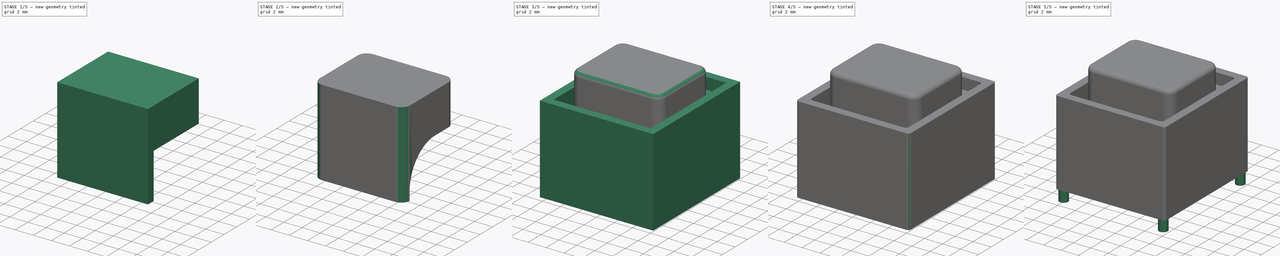
[diagram: build sequence overview — one tinted view per stage of 5, left to right]
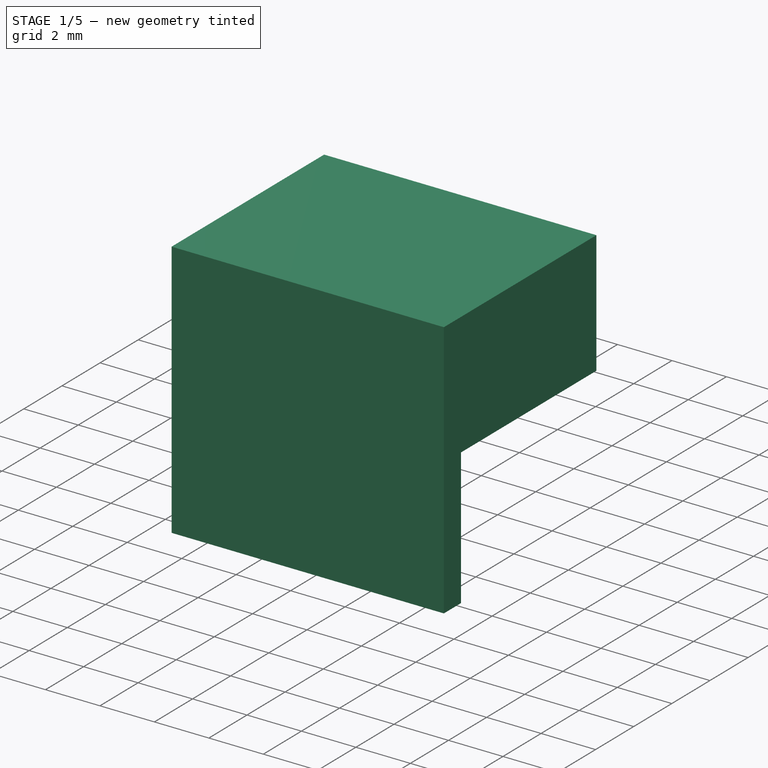
[diagram: stage 1 of 5 — iso view after this stage's code; geometry added in this stage tinted green]
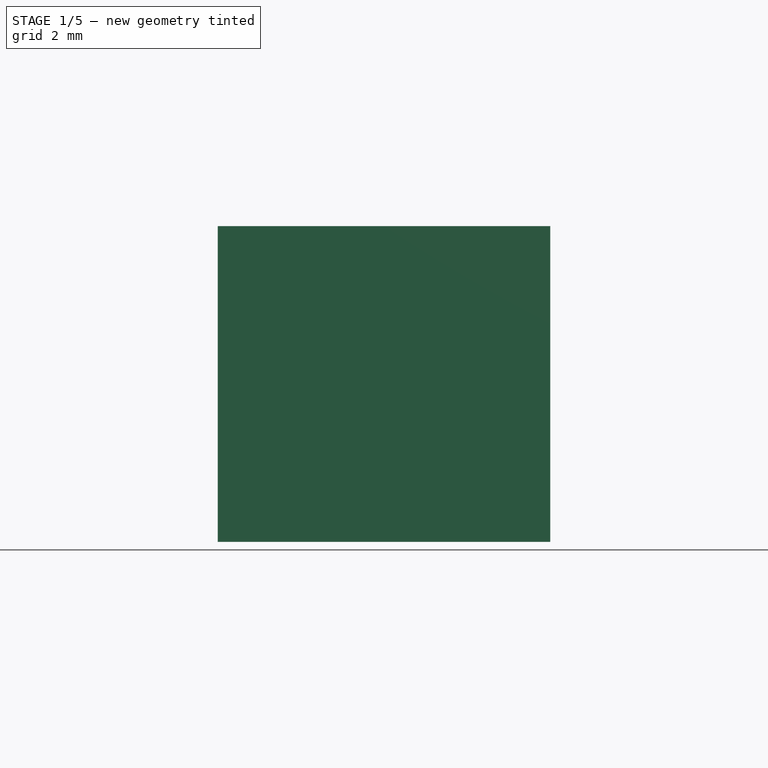
[diagram: stage 1 of 5 — front view after this stage's code; geometry added in this stage tinted green]
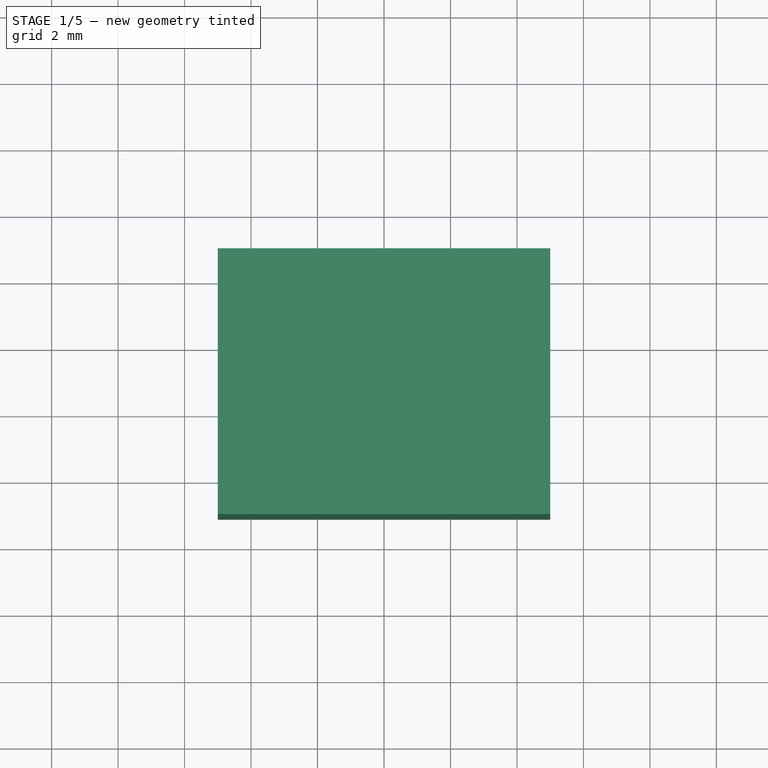
[diagram: stage 1 of 5 — top view after this stage's code; geometry added in this stage tinted green]
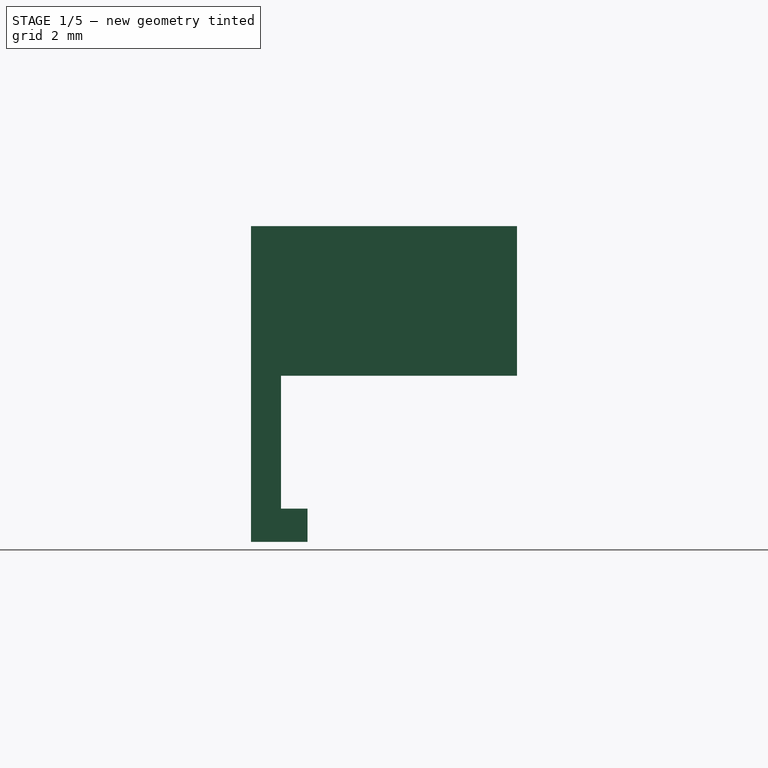
[diagram: stage 1 of 5 — right view after this stage's code; geometry added in this stage tinted green]
FCSTD DOCUMENT  (FreeCAD 0.18R16146 (Git))
Label: switch10x8_V1_0
License: All rights reserved
LicenseURL: http://en.wikipedia.org/wiki/All_rights_reserved
objects: Drawing::FeatureViewPython×14, PartDesign::Fillet×10, Drawing::FeatureViewPart×9, Sketcher::SketchObject×8, PartDesign::Pad×5, Drawing::FeaturePage×4, PartDesign::Pocket×3, Part::Feature×2, PartDesign::Body×2, PartDesign::Plane×1, PartDesign::Mirrored×1, PartDesign::ShapeBinder×1, Part::Compound×1
note: 42 computed .brp shape members not serialized (recipe doc carries the construction recipe); baked Part::Feature solids carry a one-line shape summary decoded from their .brp

FEATURE [Part::Feature] Part__Feature  label="LED_WS2812_PLCC6_50x50mm_P16mm"
  shape: bbox 5.4 x 5 x 1.85 mm, 94 faces (baked)
FEATURE [PartDesign::Plane] DatumPlane  label="UnterkanteFaceplate"
  Length = 24
  MapMode = 2
  Placement = pos=(0,0,10) rot=(0,0,1;0rad)
  ResizeMode = 0
  Width = 24
FEATURE [Sketcher::SketchObject] Sketch
  MapMode = 5
  Placement = pos=(0,0,10) rot=(0,0,1;0rad)
  Support = -> [DatumPlane]
  sketch-geometry (5):
    g0: LineSegment StartX=-5 StartY=2.9 StartZ=0 EndX=5 EndY=2.9 EndZ=0
    g1: LineSegment StartX=5 StartY=2.9 StartZ=0 EndX=5 EndY=-5.1 EndZ=0
    g2: LineSegment StartX=5 StartY=-5.1 StartZ=0 EndX=-5 EndY=-5.1 EndZ=0
    g3: LineSegment StartX=-5 StartY=-5.1 StartZ=0 EndX=-5 EndY=2.9 EndZ=0
    g4: GeomPoint X=0 Y=-1.1 Z=0
  constraints (13):
    c: Coincident(g0,g1)
    c: Coincident(g1,g2)
    c: Coincident(g2,g3)
    c: Coincident(g3,g0)
    c: Horizontal(g0)
    c: Horizontal(g2)
    c: Vertical(g1)
    c: Vertical(g3)
    c: DistanceY(g1,g1) = 8
    c: DistanceX(g0,g0) = 10
    c: PointOnObject(g4,g-2)
    c: DistanceY(g4,g-1) = 1.1
    c: Symmetric(g0,g1,g4)
FEATURE [Part::Feature] Part__Feature001  label="SW_SPST_CK_RS282G05A3"
  Placement = pos=(0,-4.5,0) rot=(0,0,1;0rad)
  shape: bbox 8 x 3.5 x 2.5 mm, 109 faces (baked)
FEATURE [PartDesign::Pad] Pad  label="Körper"
  Length = 2
  Length2 = 7.5
  Placement = pos=(0,0,10) rot=(0,0,1;0rad)
  Profile = -> Sketch
  Reversed = true
  Type = 4
FEATURE [Sketcher::SketchObject] Sketch001
  ExternalGeometry = -> [Pad]
  MapMode = 5
  Placement = pos=(0,0,2.5) rot=(1,0,0;3.14159rad)
  Support = -> [Pad]
  sketch-geometry (5):
    g0: GeomPoint X=0 Y=1.1 Z=0
    g1: LineSegment StartX=-4.1 StartY=4.2 StartZ=0 EndX=4.1 EndY=4.2 EndZ=0
    g2: LineSegment StartX=4.1 StartY=4.2 StartZ=0 EndX=4.1 EndY=-2 EndZ=0
    g3: LineSegment StartX=4.1 StartY=-2 StartZ=0 EndX=-4.1 EndY=-2 EndZ=0
    g4: LineSegment StartX=-4.1 StartY=-2 StartZ=0 EndX=-4.1 EndY=4.2 EndZ=0
  constraints (12):
    c: Symmetric(g-3,g-4,g0)
    c: Coincident(g1,g2)
    c: Coincident(g2,g3)
    c: Coincident(g3,g4)
    c: Coincident(g4,g1)
    c: Horizontal(g1)
    c: Vertical(g2)
    c: Vertical(g4)
    c: DistanceY(g1,g-3) = 0.9
    c: DistanceY(g-4,g2) = 0.9
    c: Symmetric(g3,g2,g-2)
    c: DistanceX(g2,g-4) = 0.9
FEATURE [PartDesign::Pocket] Pocket  label="Aushöhlung"
  BaseFeature = -> Pad
  Length = 8
  Length2 = 100
  Placement = pos=(0,0,10) rot=(0,0,1;0rad)
  Profile = -> Sketch001
  Type = 0
FEATURE [Sketcher::SketchObject] Sketch002
  ExternalGeometry = -> [Pocket]
  MapMode = 5
  Placement = pos=(0,0,2.5) rot=(1,0,0;3.14159rad)
  Support = -> [Pocket]
  sketch-geometry (8):
    g0: LineSegment StartX=-4.1 StartY=4.2 StartZ=0 EndX=-5 EndY=4.2 EndZ=0
    g1: LineSegment StartX=-5 StartY=4.2 StartZ=0 EndX=-5 EndY=-2.9 EndZ=0
    g2: LineSegment StartX=-5 StartY=-2.9 StartZ=0 EndX=5 EndY=-2.9 EndZ=0
    g3: LineSegment StartX=5 StartY=-2.9 StartZ=0 EndX=5 EndY=4.2 EndZ=0
    g4: LineSegment StartX=5 StartY=4.2 StartZ=0 EndX=4.1 EndY=4.2 EndZ=0
    g5: LineSegment StartX=-4.1 StartY=4.2 StartZ=0 EndX=-4.1 EndY=-2 EndZ=0
    g6: LineSegment StartX=-4.1 StartY=-2 StartZ=0 EndX=4.1 EndY=-2 EndZ=0
    g7: LineSegment StartX=4.1 StartY=-2 StartZ=0 EndX=4.1 EndY=4.2 EndZ=0
  constraints (18):
    c: Coincident(g0,g-6)
    c: PointOnObject(g0,g-4)
    c: Horizontal(g0)
    c: Coincident(g0,g1)
    c: Coincident(g1,g-4)
    c: Coincident(g1,g2)
    c: Coincident(g2,g-7)
    c: Coincident(g2,g3)
    c: PointOnObject(g3,g-7)
    c: Coincident(g3,g4)
    c: Coincident(g4,g-8)
    c: Horizontal(g4)
    c: Coincident(g0,g5)
    c: Coincident(g5,g-5)
    c: Coincident(g5,g6)
    c: Coincident(g6,g-8)
    c: Coincident(g6,g7)
    c: Coincident(g7,g4)
FEATURE [PartDesign::Pocket] Pocket001  label="Verschneidung"
  BaseFeature = -> Pocket
  Length = 5
  Length2 = 100
  Placement = pos=(0,0,10) rot=(0,0,1;0rad)
  Profile = -> Sketch002
  Type = 0
FEATURE [Sketcher::SketchObject] Sketch003
  ExternalGeometry = -> [Pocket001]
  MapMode = 5
  Placement = pos=(0,-4.2,10) rot=(0,0.707107,0.707107;3.14159rad)
  Support = -> [Pocket001]
  sketch-geometry (5):
    g0: LineSegment StartX=-1.5 StartY=-6.5 StartZ=0 EndX=1.5 EndY=-6.5 EndZ=0
    g1: LineSegment StartX=1.5 StartY=-6.5 StartZ=0 EndX=1.5 EndY=-7.5 EndZ=0
    g2: LineSegment StartX=1.5 StartY=-7.5 StartZ=0 EndX=-1.5 EndY=-7.5 EndZ=0
    g3: LineSegment StartX=-1.5 StartY=-7.5 StartZ=0 EndX=-1.5 EndY=-6.5 EndZ=0
    g4: GeomPoint X=0 Y=-7 Z=0
  constraints (12):
    c: Coincident(g0,g1)
    c: Coincident(g1,g2)
    c: Coincident(g2,g3)
    c: Coincident(g3,g0)
    c: Horizontal(g0)
    c: Vertical(g1)
    c: Vertical(g3)
    c: DistanceY(g1,g1) = 1
    c: DistanceX(g0,g0) = 3
    c: PointOnObject(g4,g-2)
    c: Symmetric(g0,g1,g4)
    c: Tangent(g2,g-3)
FEATURE [PartDesign::Pad] Pad001  label="LascheBtn"
  BaseFeature = -> Pocket001
  Length = 0.8
  Length2 = 100
  Placement = pos=(0,0,10) rot=(0,0,1;0rad)
  Profile = -> Sketch003
  Type = 0
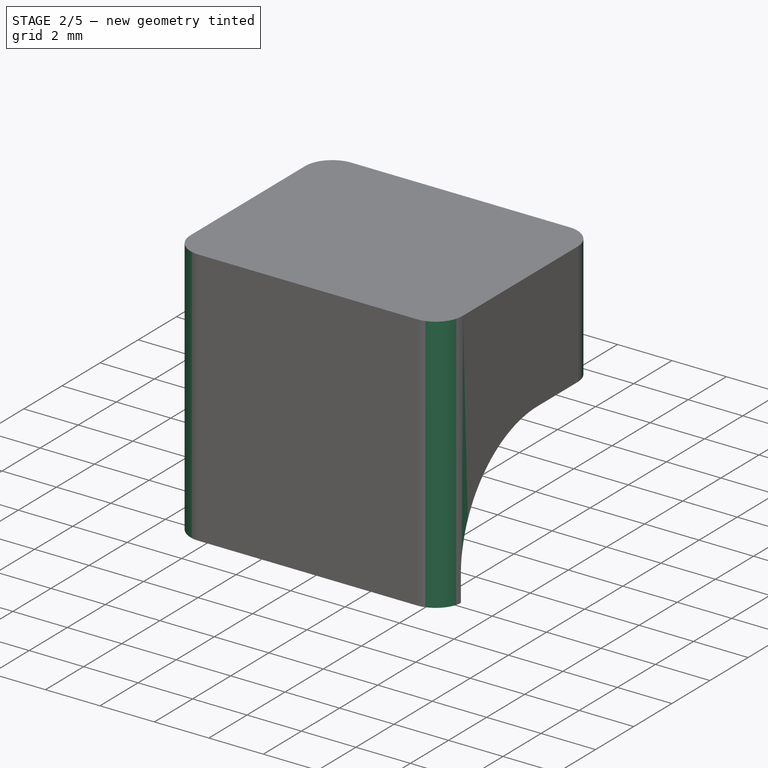
[diagram: stage 2 of 5 — iso view after this stage's code; geometry added in this stage tinted green]
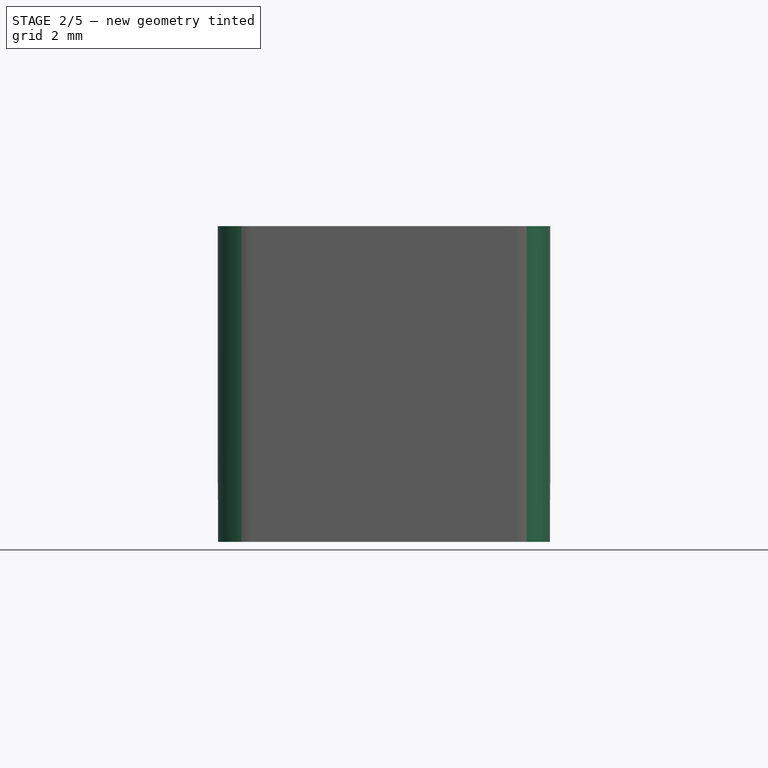
[diagram: stage 2 of 5 — front view after this stage's code; geometry added in this stage tinted green]
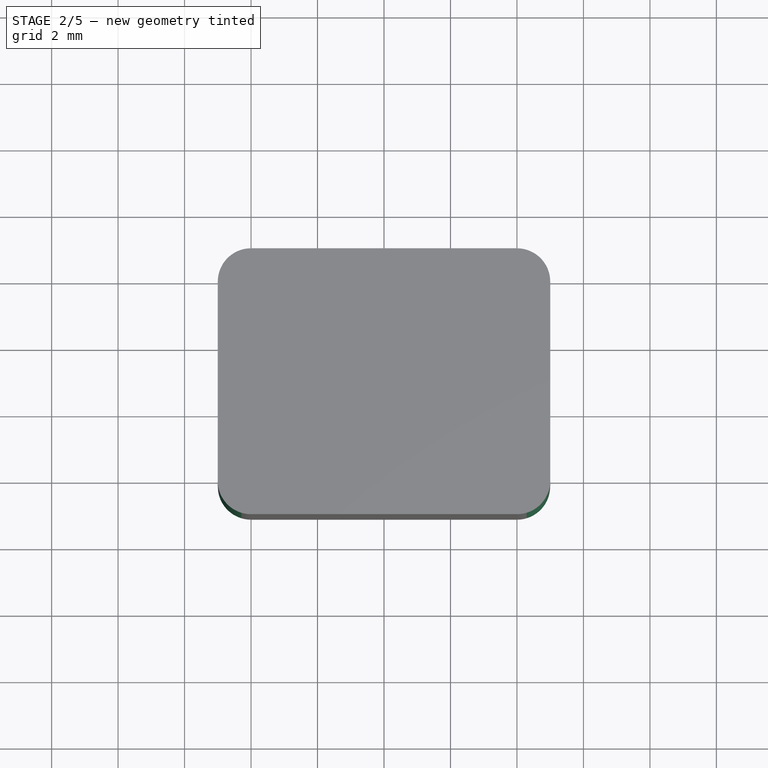
[diagram: stage 2 of 5 — top view after this stage's code; geometry added in this stage tinted green]
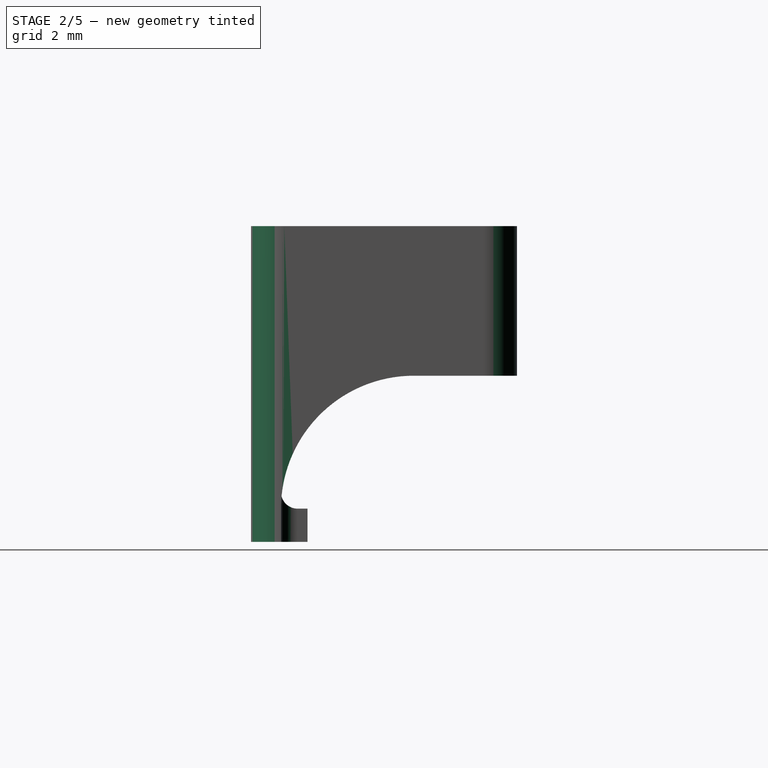
[diagram: stage 2 of 5 — right view after this stage's code; geometry added in this stage tinted green]
FEATURE [PartDesign::Fillet] Fillet  label="FilletLascheBtn"
  Base = -> Pad001 [Edge37,Edge36,Edge38]
  BaseFeature = -> Pad001
  Placement = pos=(0,0,10) rot=(0,0,1;0rad)
  Radius = 0.5
FEATURE [PartDesign::Fillet] Fillet001  label="Fillet001Bogen"
  Base = -> Fillet [Edge25,Edge36]
  BaseFeature = -> Fillet
  Placement = pos=(0,0,10) rot=(0,0,1;0rad)
  Radius = 4
FEATURE [PartDesign::Fillet] Fillet002  label="Fillet002innen"
  Base = -> Fillet001 [Edge27,Edge29,Edge26,Edge53,Edge23,Edge52,Edge51,Edge22,Edge24]
  BaseFeature = -> Fillet001
  Placement = pos=(0,0,10) rot=(0,0,1;0rad)
  Radius = 0.4
FEATURE [PartDesign::Fillet] Fillet003  label="Fillet003außen"
  Base = -> Fillet002 [Edge59,Edge57,Edge38,Edge36]
  BaseFeature = -> Fillet002
  Placement = pos=(0,0,10) rot=(0,0,1;0rad)
  Radius = 1
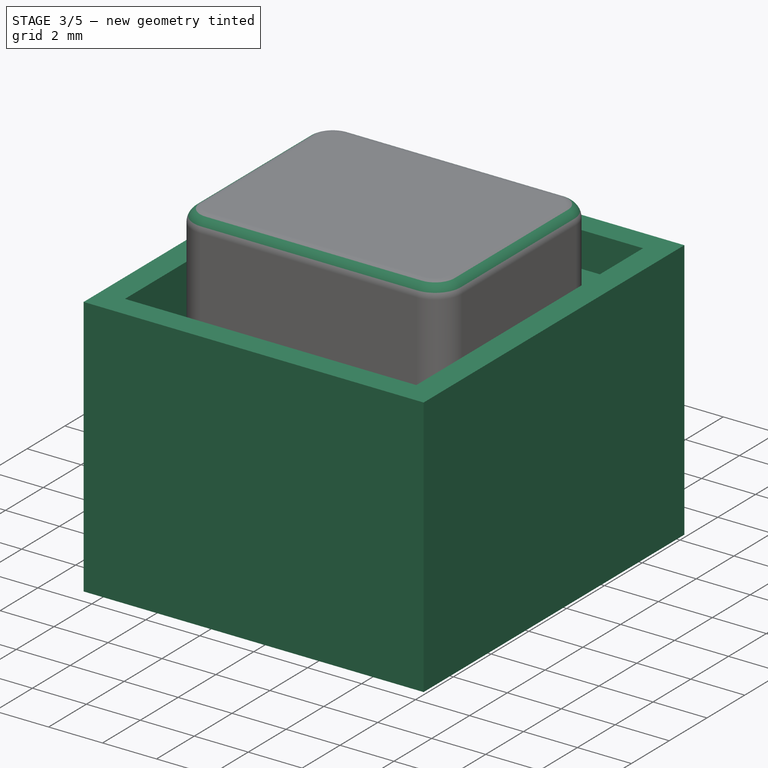
[diagram: stage 3 of 5 — iso view after this stage's code; geometry added in this stage tinted green]
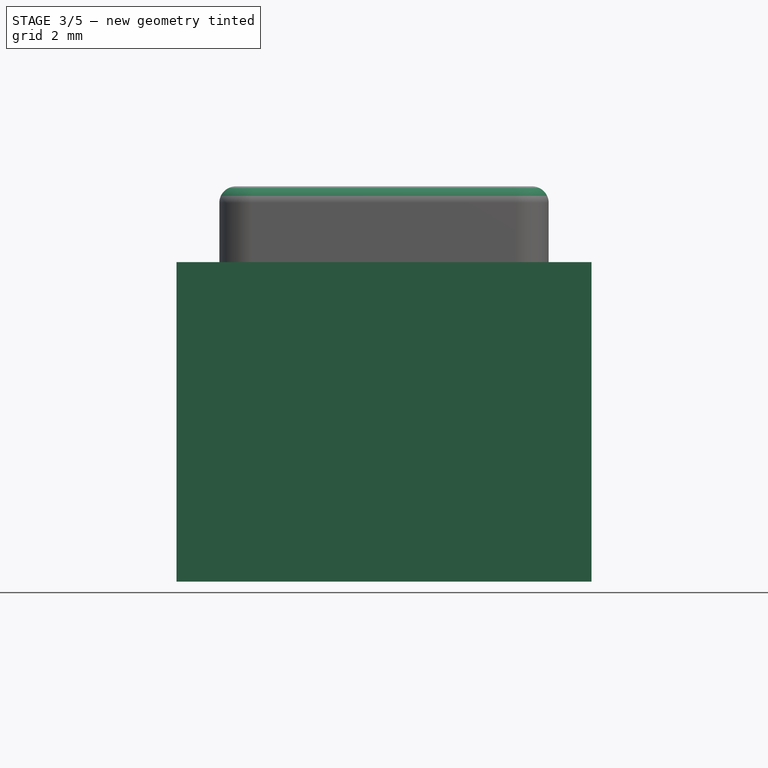
[diagram: stage 3 of 5 — front view after this stage's code; geometry added in this stage tinted green]
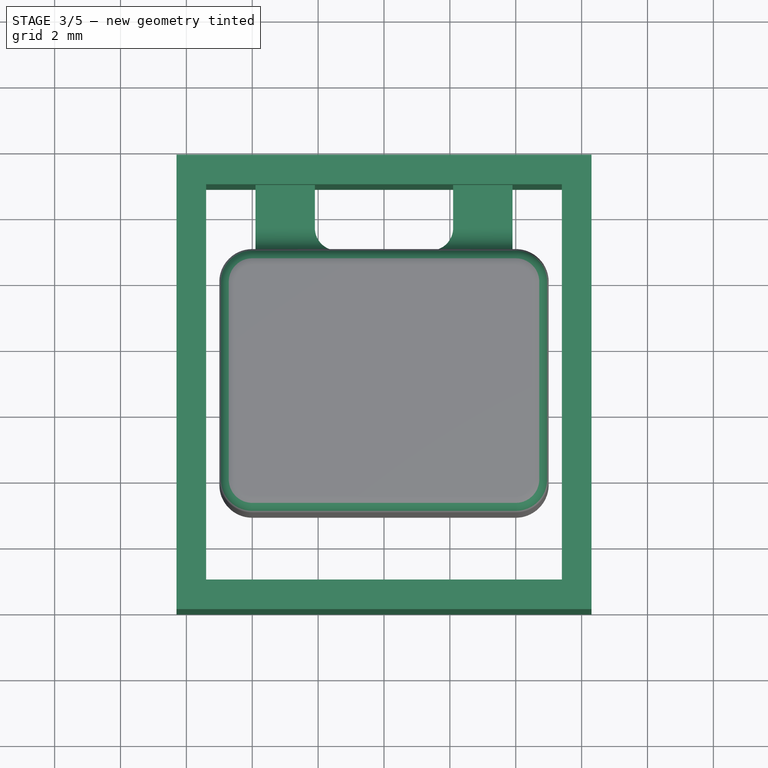
[diagram: stage 3 of 5 — top view after this stage's code; geometry added in this stage tinted green]
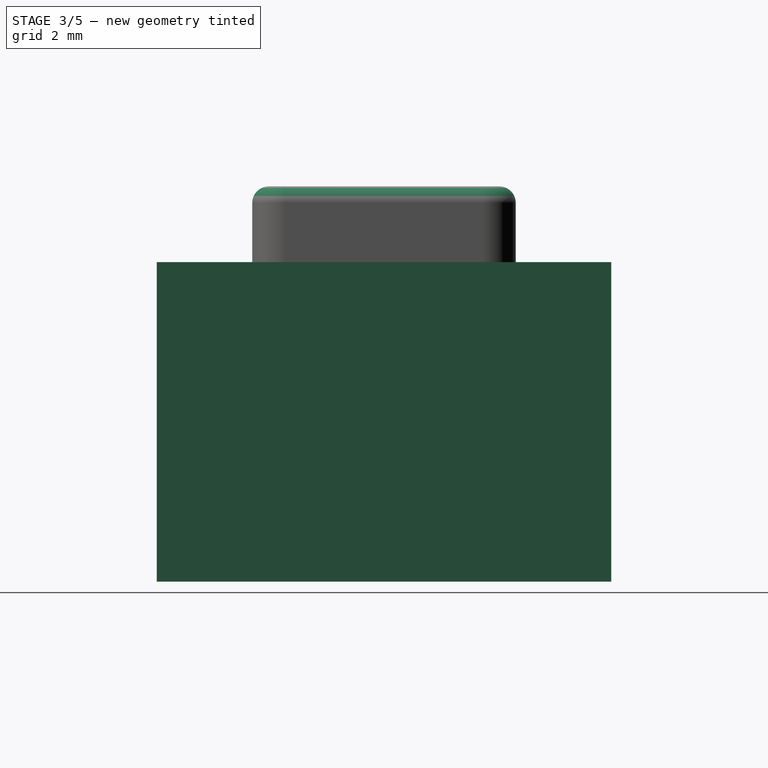
[diagram: stage 3 of 5 — right view after this stage's code; geometry added in this stage tinted green]
FEATURE [Sketcher::SketchObject] Sketch005
  MapMode = 5
  Support = -> [XY_Plane001]
  sketch-geometry (10):
    g0: LineSegment StartX=-5.4 StartY=4.9 StartZ=0 EndX=5.4 EndY=4.9 EndZ=0
    g1: LineSegment StartX=5.4 StartY=4.9 StartZ=0 EndX=5.4 EndY=-7.1 EndZ=0
    g2: LineSegment StartX=5.4 StartY=-7.1 StartZ=0 EndX=-5.4 EndY=-7.1 EndZ=0
    g3: LineSegment StartX=-5.4 StartY=-7.1 StartZ=0 EndX=-5.4 EndY=4.9 EndZ=0
    g4: GeomPoint X=0 Y=-1.1 Z=0
    g5: LineSegment StartX=-6.3 StartY=5.8 StartZ=0 EndX=6.3 EndY=5.8 EndZ=0
    g6: LineSegment StartX=6.3 StartY=5.8 StartZ=0 EndX=6.3 EndY=-8 EndZ=0
    g7: LineSegment StartX=6.3 StartY=-8 StartZ=0 EndX=-6.3 EndY=-8 EndZ=0
    g8: LineSegment StartX=-6.3 StartY=-8 StartZ=0 EndX=-6.3 EndY=5.8 EndZ=0
    g9: LineSegment [constr] StartX=4.00276 StartY=-4.5 StartZ=0 EndX=4.00276 EndY=0 EndZ=0
  constraints (27):
    c: Coincident(g0,g1)
    c: Coincident(g1,g2)
    c: Coincident(g2,g3)
    c: Coincident(g3,g0)
    c: Horizontal(g0)
    c: Horizontal(g2)
    c: Vertical(g1)
    c: Vertical(g3)
    c: DistanceX(g0,g0) = 10.8
    c: DistanceY(g1,g1) = 12
    c: PointOnObject(g4,g-2)
    c: Symmetric(g0,g1,g4)
    c: DistanceY(g4,g-1) = 1.1
    c: Coincident(g5,g6)
    c: Coincident(g6,g7)
    c: Coincident(g7,g8)
    c: Coincident(g8,g5)
    c: Horizontal(g5)
    c: Horizontal(g7)
    c: Vertical(g6)
    c: Vertical(g8)
    c: Symmetric(g5,g6,g4)
    c: DistanceY(g0,g5) = 0.9
    c: DistanceX(g0,g5) = 0.9
    c: PointOnObject(g9,g-1)
    c: Vertical(g9)
    c: DistanceY(g9,g9) = 4.5
FEATURE [PartDesign::Pad] Pad003  label="frame001"
  Length = 9.7
  Length2 = 100
  Profile = -> Sketch005
  Type = 0
FEATURE [PartDesign::Fillet] Fillet014  label="Fillet014Oben"
  Base = -> Fillet003 [Edge8,Edge45,Edge48,Edge50]
  BaseFeature = -> Fillet003
  Placement = pos=(0,0,10) rot=(0,0,1;0rad)
  Radius = 0.5
FEATURE [Drawing::FeaturePage] Page  label="Leer"
  EditableTexts = Designed by Name | Date | Scale | Weight | Title | Subtitle | Drawing number | Sheet
  Template = /Applications/FreeCAD.app/Contents/Resources/data/Mod/Drawing/Templates/A4_Landscape.svg
FEATURE [Drawing::FeaturePage] Page002  label="Rahmen"
  EditableTexts = Christopher Wüpping | 10.01.2020 | 5:1 | Rahmen | WS28-Switch 10x8 | 2020LUM_SW_10x8_RA_V1_0 | 2 / 3
  Template = /Applications/FreeCAD.app/Contents/Resources/data/Mod/Drawing/Templates/A4_Landscape.svg
FEATURE [Drawing::FeaturePage] Page003  label="Zusammenbauzeichnung"
  EditableTexts = Christopher Wüpping | 20.01.2020 | 5:1 | Zusammenbauzeichnung | WS28-Switch 10x8 | 2020LUM_SW_10x8_MON_V1_0 | 3 / 3
  Template = /Applications/FreeCAD.app/Contents/Resources/data/Mod/Drawing/Templates/A4_Landscape.svg
FEATURE [PartDesign::ShapeBinder] CopyFillet014
  Placement = pos=(0,0,10) rot=(0,0,1;0rad)
  TraceSupport = false
FEATURE [PartDesign::Body] Body001  label="frame"
  Group = -> [Sketch005,Pad003,Fillet005,Fillet006,Sketch006,Pocket002,Mirrored001,Fillet007,Sketch007,Pad004,Fillet008,CopyFillet014]
  Origin = -> Origin001
  Tip = -> Fillet008
FEATURE [Sketcher::SketchObject] Sketch015
  MapMode = 5
  Placement = pos=(0,2.9,10) rot=(0,0.707107,0.707107;3.14159rad)
  Support = -> [Fillet014]
  sketch-geometry (12):
    g0: LineSegment StartX=-3.9 StartY=-1.6 StartZ=0 EndX=-2.1 EndY=-1.6 EndZ=0
    g1: LineSegment StartX=-2.1 StartY=-1.6 StartZ=0 EndX=-2.1 EndY=-2.5 EndZ=0
    g2: LineSegment StartX=-2.1 StartY=-2.5 StartZ=0 EndX=-3.9 EndY=-2.5 EndZ=0
    g3: LineSegment StartX=-3.9 StartY=-2.5 StartZ=0 EndX=-3.9 EndY=-1.6 EndZ=0
    g4: LineSegment StartX=2.1 StartY=-1.6 StartZ=0 EndX=3.9 EndY=-1.6 EndZ=0
    g5: LineSegment StartX=3.9 StartY=-1.6 StartZ=0 EndX=3.9 EndY=-2.5 EndZ=0
    g6: LineSegment StartX=3.9 StartY=-2.5 StartZ=0 EndX=2.1 EndY=-2.5 EndZ=0
    g7: LineSegment StartX=2.1 StartY=-2.5 StartZ=0 EndX=2.1 EndY=-1.6 EndZ=0
    g8: GeomPoint X=-3 Y=-2.05 Z=0
    g9: GeomPoint X=3 Y=-2.05 Z=0
    g10: LineSegment [constr] StartX=-3 StartY=-2.05 StartZ=0 EndX=0 EndY=-2.05 EndZ=0
    g11: LineSegment [constr] StartX=0 StartY=-2.05 StartZ=0 EndX=3 EndY=-2.05 EndZ=0
  constraints (31):
    c: Coincident(g0,g1)
    c: Coincident(g1,g2)
    c: Coincident(g2,g3)
    c: Coincident(g3,g0)
    c: Horizontal(g0)
    c: Horizontal(g2)
    c: Vertical(g1)
    c: Vertical(g3)
    c: Coincident(g4,g5)
    c: Coincident(g5,g6)
    c: Coincident(g6,g7)
    c: Coincident(g7,g4)
    c: Horizontal(g4)
    c: Horizontal(g6)
    c: Vertical(g5)
    c: Vertical(g7)
    c: Equal(g0,g4)
    c: Equal(g1,g5)
    c: Symmetric(g4,g5,g9)
    c: Symmetric(g0,g1,g8)
    c: DistanceX(g0,g0) = 1.8
    c: DistanceY(g1,g1) = 0.9
    c: DistanceY(g8,g-1) = 2.05
    c: PointOnObject(g10,g-2)
    c: Horizontal(g10)
    c: Coincident(g10,g11)
    c: Horizontal(g11)
    c: Equal(g11,g10)
    c: Coincident(g10,g8)
    c: Coincident(g9,g11)
    c: DistanceX(g8,g9) = 6
FEATURE [PartDesign::Pad] Pad008
  BaseFeature = -> Fillet014
  Length = 2.9
  Length2 = 100
  Placement = pos=(0,0,10) rot=(0,0,1;0rad)
  Profile = -> Sketch015
  Type = 0
FEATURE [PartDesign::Fillet] Fillet015
  Base = -> Pad008 [Edge75,Edge72,Edge73,Edge74]
  BaseFeature = -> Pad008
  Placement = pos=(0,0,10) rot=(0,0,1;0rad)
  Radius = 0.7
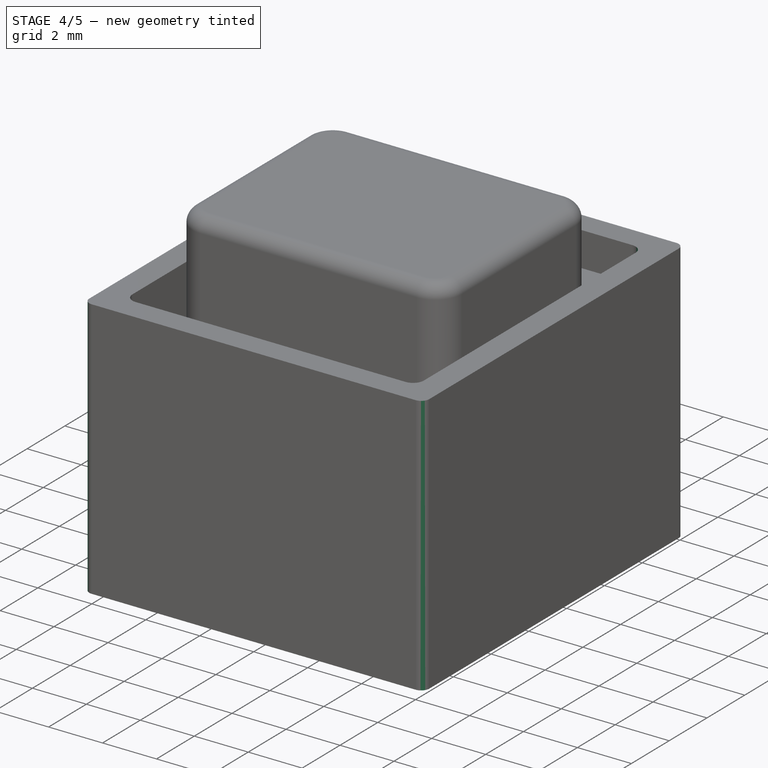
[diagram: stage 4 of 5 — iso view after this stage's code; geometry added in this stage tinted green]
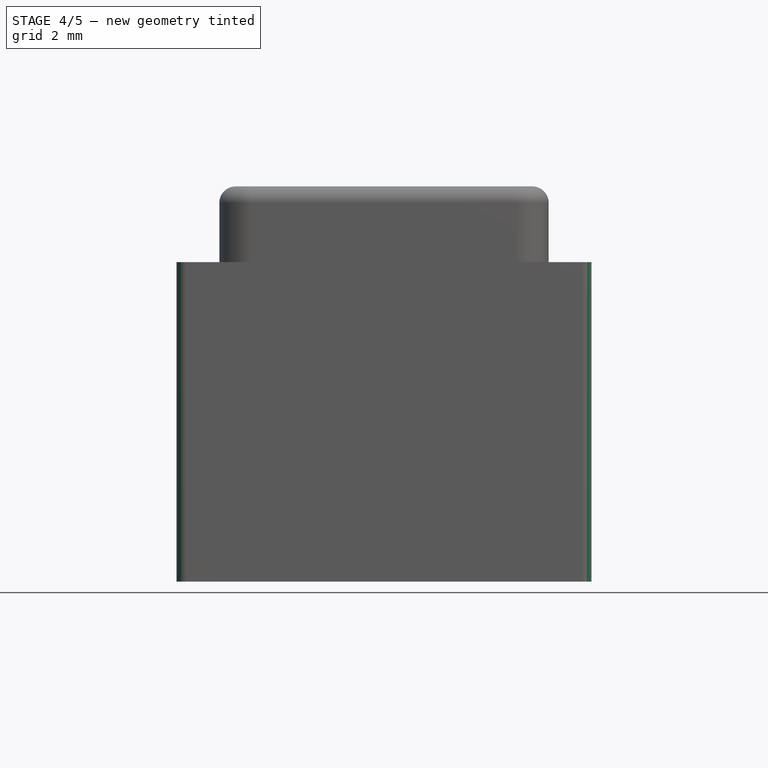
[diagram: stage 4 of 5 — front view after this stage's code; geometry added in this stage tinted green]
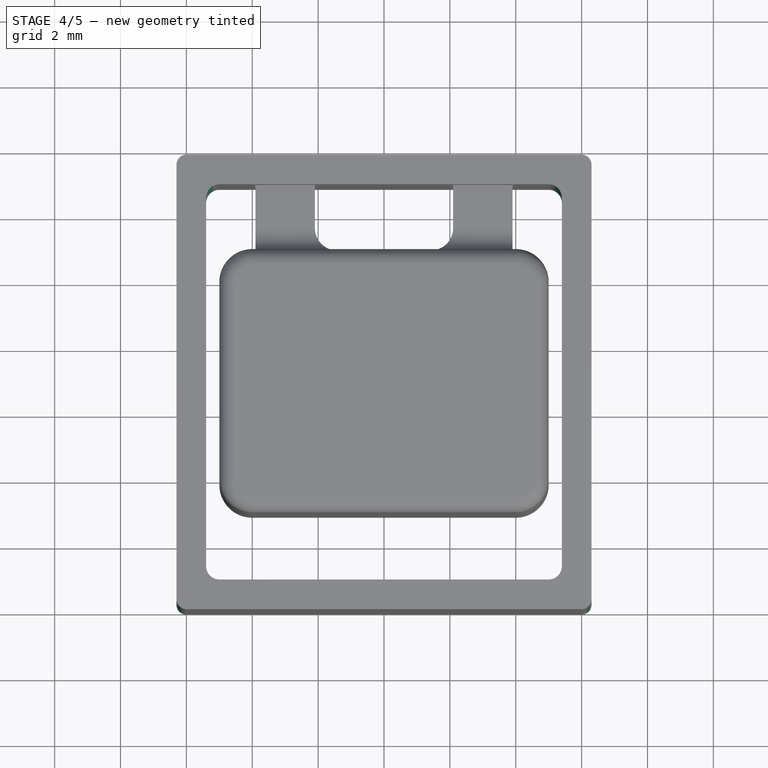
[diagram: stage 4 of 5 — top view after this stage's code; geometry added in this stage tinted green]
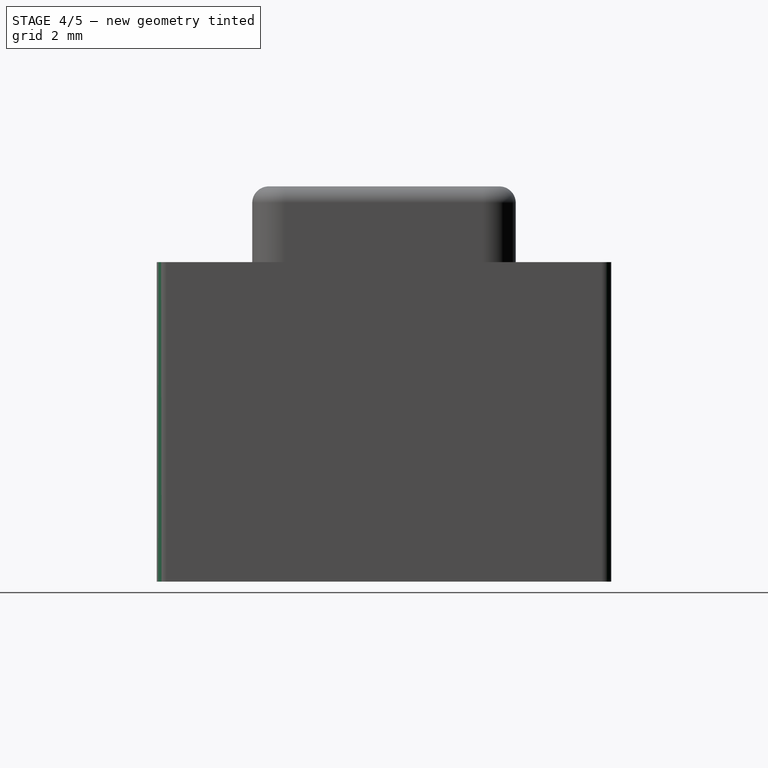
[diagram: stage 4 of 5 — right view after this stage's code; geometry added in this stage tinted green]
FEATURE [PartDesign::Fillet] Fillet005  label="Fillet005Außenkanten"
  Base = -> Pad003 [Edge1,Edge8,Edge5,Edge2]
  BaseFeature = -> Pad003
  Radius = 0.3
FEATURE [PartDesign::Fillet] Fillet006  label="Fillet006Innenkanten"
  Base = -> Fillet005 [Edge33,Edge34,Edge35,Edge36]
  BaseFeature = -> Fillet005
  Radius = 0.4
FEATURE [Sketcher::SketchObject] Sketch006
  MapMode = 5
  Placement = pos=(0,5.8,0) rot=(0,0.707107,0.707107;3.14159rad)
  Support = -> [Fillet006]
  sketch-geometry (5):
    g0: LineSegment StartX=-3.925 StartY=8.425 StartZ=0 EndX=-2.075 EndY=8.425 EndZ=0
    g1: LineSegment StartX=-2.075 StartY=8.425 StartZ=0 EndX=-2.075 EndY=7.475 EndZ=0
    g2: LineSegment StartX=-2.075 StartY=7.475 StartZ=0 EndX=-3.925 EndY=7.475 EndZ=0
    g3: LineSegment StartX=-3.925 StartY=7.475 StartZ=0 EndX=-3.925 EndY=8.425 EndZ=0
    g4: GeomPoint X=-3 Y=7.95 Z=0
  constraints (13):
    c: Coincident(g0,g1)
    c: Coincident(g1,g2)
    c: Coincident(g2,g3)
    c: Coincident(g3,g0)
    c: Horizontal(g0)
    c: Horizontal(g2)
    c: Vertical(g1)
    c: Vertical(g3)
    c: DistanceY(g1,g1) = 0.95
    c: DistanceX(g0,g0) = 1.85
    c: Symmetric(g0,g1,g4)
    c: DistanceX(g4,g-1) = 3
    c: DistanceY(g-1,g4) = 7.95
FEATURE [PartDesign::Pocket] Pocket002
  BaseFeature = -> Fillet006
  Length = 5
  Length2 = 100
  Profile = -> Sketch006
  Type = 2
FEATURE [PartDesign::Mirrored] Mirrored001
  BaseFeature = -> Pocket002
  MirrorPlane = -> Sketch006 [V_Axis]
  Originals = -> [Pocket002]
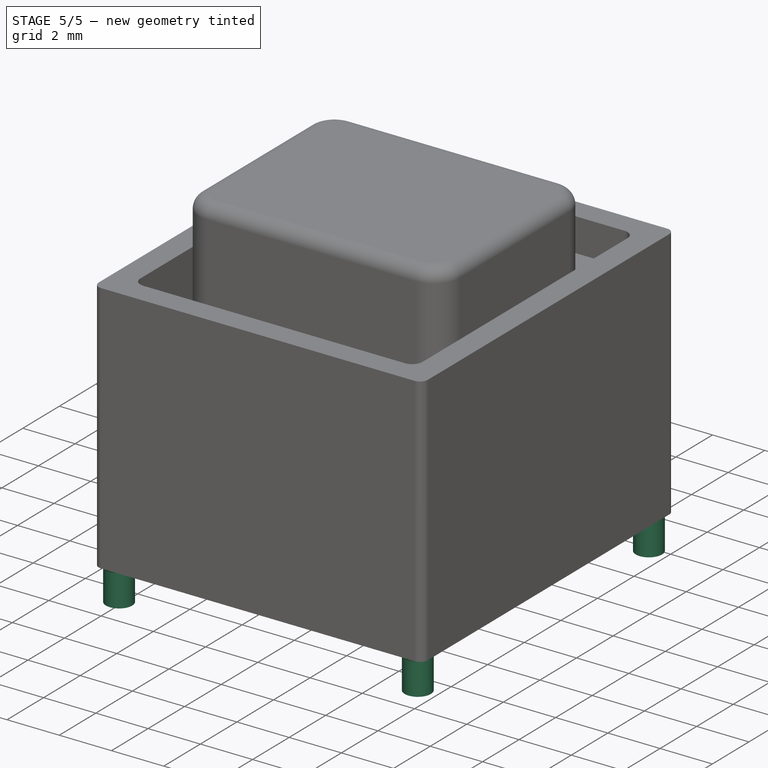
[diagram: stage 5 of 5 — iso view after this stage's code; geometry added in this stage tinted green]
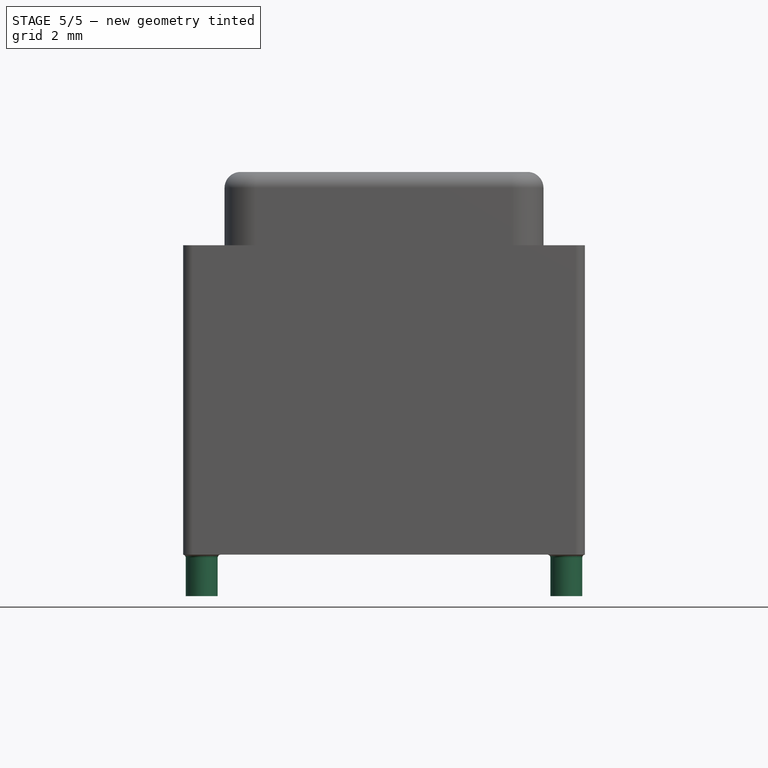
[diagram: stage 5 of 5 — front view after this stage's code; geometry added in this stage tinted green]
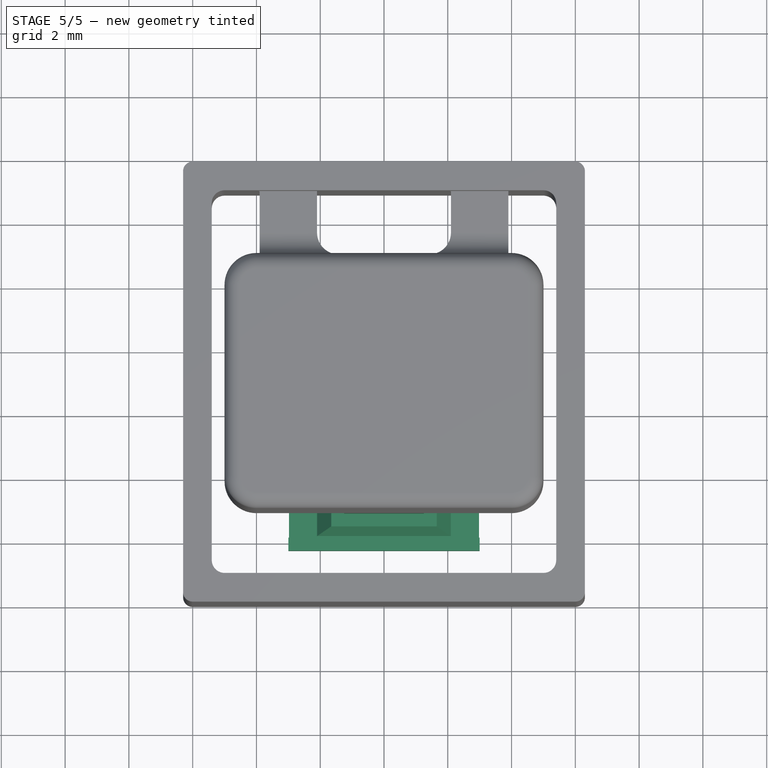
[diagram: stage 5 of 5 — top view after this stage's code; geometry added in this stage tinted green]
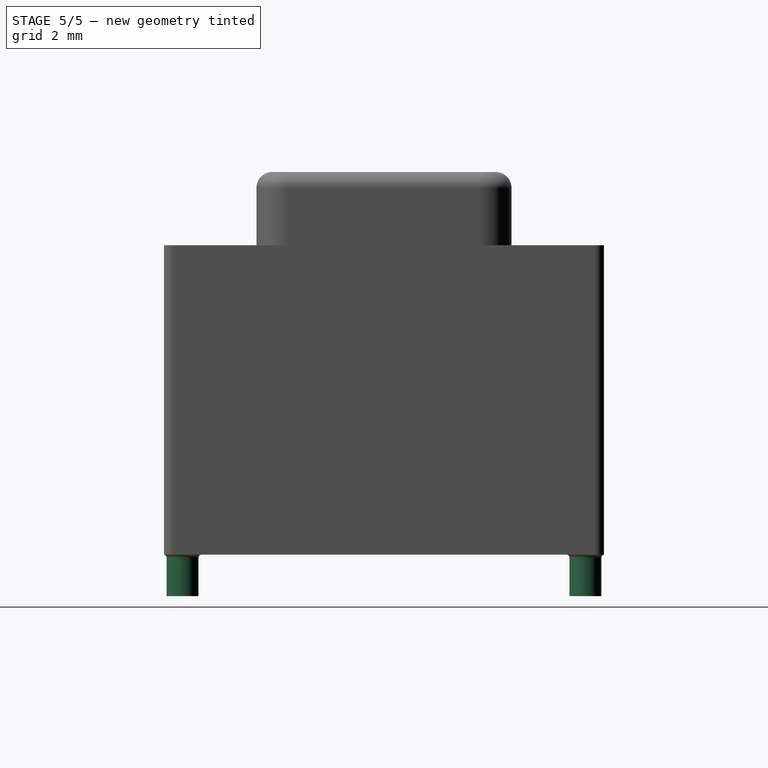
[diagram: stage 5 of 5 — right view after this stage's code; geometry added in this stage tinted green]
FEATURE [PartDesign::Fillet] Fillet007
  Base = -> Mirrored001 [Edge68,Edge67,Edge70,Edge69,Edge71,Edge72,Edge66,Edge65]
  BaseFeature = -> Mirrored001
  Radius = 0.13
FEATURE [Sketcher::SketchObject] Sketch007
  ExternalGeometry = -> [Fillet007]
  MapMode = 5
  Placement = pos=(0,0,0) rot=(1,0,0;3.14159rad)
  Support = -> [Fillet007]
  sketch-geometry (9):
    g0: LineSegment [constr] StartX=-5.78787 StartY=7.48787 StartZ=0 EndX=-5 EndY=6.7 EndZ=0
    g1: LineSegment [constr] StartX=5.78787 StartY=7.48787 StartZ=0 EndX=5 EndY=6.7 EndZ=0
    g2: LineSegment [constr] StartX=-5 StartY=-4.5 StartZ=0 EndX=-5.78787 EndY=-5.28787 EndZ=0
    g3: LineSegment [constr] StartX=5 StartY=-4.5 StartZ=0 EndX=5.78787 EndY=-5.28787 EndZ=0
    g4: Circle CenterX=-5.71716 CenterY=7.41716 CenterZ=0 NormalX=0 NormalY=0 NormalZ=1 AngleXU=0 Radius=0.5
    g5: Circle CenterX=5.71716 CenterY=7.41716 CenterZ=0 NormalX=0 NormalY=0 NormalZ=1 AngleXU=0 Radius=0.5
    g6: Circle CenterX=-5.71716 CenterY=-5.21716 CenterZ=0 NormalX=0 NormalY=0 NormalZ=1 AngleXU=0 Radius=0.5
    g7: Circle CenterX=5.71716 CenterY=-5.21716 CenterZ=0 NormalX=0 NormalY=0 NormalZ=1 AngleXU=0 Radius=0.5
    g8: LineSegment [constr] StartX=5.71716 StartY=7.41716 StartZ=0 EndX=6 EndY=7.7 EndZ=0
  constraints (26):
    c: PointOnObject(g0,g-3)
    c: Coincident(g0,g-4)
    c: PointOnObject(g-3,g0)
    c: PointOnObject(g-6,g1)
    c: Coincident(g-5,g1)
    c: Coincident(g3,g-7)
    c: Coincident(g2,g-9)
    c: PointOnObject(g2,g-10)
    c: PointOnObject(g3,g-8)
    c: PointOnObject(g1,g-6)
    c: PointOnObject(g-8,g3)
    c: PointOnObject(g-10,g2)
    c: PointOnObject(g4,g0)
    c: Diameter(g4) = 1
    c: PointOnObject(g5,g1)
    c: PointOnObject(g6,g2)
    c: PointOnObject(g7,g3)
    c: Equal(g7,g6)
    c: Equal(g4,g7)
    c: Equal(g5,g4)
    c: Coincident(g8,g5)
    c: Coincident(g8,g-6)
    c: Distance(g0,g4) = 0.1
    c: Distance(g5,g1) = 0.1
    c: Distance(g2,g6) = 0.1
    c: Distance(g7,g3) = 0.1
FEATURE [PartDesign::Pad] Pad004
  BaseFeature = -> Fillet007
  Length = 1.3
  Length2 = 100
  Profile = -> Sketch007
  Type = 0
FEATURE [PartDesign::Fillet] Fillet008  label="Fillet008ÜbergangFüße"
  Base = -> Pad004 [Edge55,Edge45,Edge46,Edge47]
  BaseFeature = -> Pad004
  Radius = 0.1
FEATURE [PartDesign::Body] Body  label="Stößel"
  Group = -> [DatumPlane,Sketch,Pad,Sketch001,Pocket,Sketch002,Pocket001,Sketch003,Pad001,Fillet,Fillet001,Fillet002,Fillet003,Fillet014,Sketch015,Pad008,Fillet015]
  Origin = -> Origin
  Tip = -> Fillet015
FEATURE [Drawing::FeatureViewPart] Ortho  label="Ortho_0_0"
  Direction = (0,-1,0)
  HiddenWidth = 0.15
  LineWidth = 0.35
  Rotation = 90
  Scale = 5
  ShowHiddenLines = true
  ShowSmoothLines = true
  Source = -> Body
  Tolerance = 0.05
  ViewResult = <blob: 14776 chars omitted>
  Visible = false
  X = 65
  Y = 86.25
FEATURE [Drawing::FeatureViewPart] Ortho001  label="Ortho_1_0"
  Direction = (-1,0,0)
  HiddenWidth = 0.15
  LineWidth = 0.35
  Rotation = 90
  Scale = 5
  ShowHiddenLines = true
  ShowSmoothLines = true
  Source = -> Body
  Tolerance = 0.05
  ViewResult = <blob: 12545 chars omitted>
  Visible = false
  X = 146.75
  Y = 86.25
FEATURE [Drawing::FeatureViewPart] Ortho002  label="Ortho_2_0"
  Direction = (0,1,0)
  HiddenWidth = 0.15
  LineWidth = 0.35
  Rotation = -90
  Scale = 5
  ShowHiddenLines = true
  ShowSmoothLines = true
  Source = -> Body
  Tolerance = 0.05
  ViewResult = <blob: 13957 chars omitted>
  Visible = false
  X = 225
  Y = 86.25
FEATURE [Drawing::FeatureViewPart] Ortho004  label="Ortho_0_-1"
  Direction = (0,0,1)
  HiddenWidth = 0.15
  LineWidth = 0.35
  Rotation = 0
  Scale = 5
  ShowHiddenLines = true
  ShowSmoothLines = true
  Source = -> Body
  Tolerance = 0.05
  ViewResult = <blob: 10063 chars omitted>
  Visible = false
  X = 65
  Y = 119.75
FEATURE [Drawing::FeatureViewPart] Ortho005  label="Ortho_0_001"
  Direction = (0,-1,0)
  HiddenWidth = 0.15
  LineWidth = 0.35
  Rotation = 90
  ShowHiddenLines = false
  ShowSmoothLines = true
  Source = -> Body
  Tolerance = 0.05
  ViewResult = <blob: 2993 chars omitted>
  Visible = false
  X = 210
  Y = 115.25
FEATURE [Drawing::FeatureViewPart] Ortho006  label="Ortho_2_001"
  Direction = (0,1,0)
  HiddenWidth = 0.15
  LineWidth = 0.35
  Rotation = -90
  ShowHiddenLines = false
  ShowSmoothLines = true
  Source = -> Body
  Tolerance = 0.05
  ViewResult = <blob: 8227 chars omitted>
  Visible = false
  X = 256
  Y = 115.25
FEATURE [Drawing::FeatureViewPart] Ortho008  label="Ortho_1_001"
  Direction = (-1,0,0)
  HiddenWidth = 0.15
  LineWidth = 0.35
  Rotation = 90
  ShowHiddenLines = false
  ShowSmoothLines = true
  Source = -> Body
  Tolerance = 0.05
  ViewResult = <blob: 4318 chars omitted>
  Visible = false
  X = 233.35
  Y = 115.25
FEATURE [Drawing::FeatureViewPart] Ortho009  label="Ortho_0_-002"
  Direction = (0,0,1)
  HiddenWidth = 0.15
  LineWidth = 0.35
  Rotation = 0
  ShowHiddenLines = false
  ShowSmoothLines = true
  Source = -> Body
  Tolerance = 0.05
  ViewResult = <blob: 3468 chars omitted>
  Visible = false
  X = 210
  Y = 131.35
FEATURE [Drawing::FeatureViewPart] Ortho011  label="Ortho_1_-1"
  Direction = (-0.57735,-0.57735,0.57735)
  HiddenWidth = 0.15
  LineWidth = 0.35
  Rotation = -60
  ShowHiddenLines = false
  ShowSmoothLines = true
  Source = -> Body
  Tolerance = 0.05
  ViewResult = <blob: 3719 chars omitted>
  Visible = false
  X = 233.247
  Y = 137.062
FEATURE [Drawing::FeatureViewPython] text001  # drawing view (typed FeaturePython)
  Rotation = 0
  ViewResult = <g> <text x="267.842000" y="106.205883" font-family="inherit" font-size="5" fill="rgb(0,0,0)" text-anchor="inherit" transform="rotate(0.000000 267.842000,106.205883)" >M1:1</text> </g>
  Visible = false
  X = 0
  Y = 0
  click1_x = 267.842
  click1_y = 106.206
  rotation = 0
  text = M1:1
  textRenderer_addText_color = rgb(0,0,0)
  textRenderer_addText_family = inherit
  textRenderer_addText_size = 5
FEATURE [Drawing::FeatureViewPython] centerLines001  # drawing view (typed FeaturePython)
  Rotation = 0
  ViewResult = <g transform="scale(5.000000,5.000000)" stroke="rgb(40,40,40)"  stroke-width="0.060000" > <path d="M 13.000000,5.250000 L 13.000000,5.650000 M 13.000000,6.050000 L 13.000000,7.250000 M 13.000000,7.650000 L 13.000000,8.050000 M 13.000000,8.450000 L 13.000000,9.650000 M 13.000000,10.050000 L 13.000000,10.450000 M 13.000000,10.850000 L 13.000000,12.050000 M 13.000000,12.450000 L 13.000000,12.850000 M 13.000000,13.250000 L 13.000000,14.450000 M 13.000000,14.850000 L 13.000000,15.250000 M 13.000000,15.650000 L 13.000000,15.993751 "/>\n<path d="M 13.000000,5.250000 L 13.000000,4.850000 "/> </g> 
  Visible = false
  X = 0
  Y = 0
  centerLine_color = rgb(40,40,40)
  centerLine_len_dash = 6
  centerLine_len_dot = 2
  centerLine_len_gap = 2
  centerLine_width = 0.3
  click1_x = 66.4265
  click1_y = 79.9688
  click2_x = 69.0954
  click2_y = 22.3399
FEATURE [Drawing::FeatureViewPython] centerLines002  # drawing view (typed FeaturePython)
  Rotation = 0
  ViewResult = <g transform="scale(5.000000,5.000000)" stroke="rgb(40,40,40)"  stroke-width="0.060000" > <path d="M 13.000000,21.050000 L 13.000000,20.650000 M 13.000000,20.250000 L 13.000000,19.050000 M 13.000000,18.650000 L 13.000000,18.250000 M 13.000000,17.850000 L 13.000000,17.559360 "/>\n<path d="M 13.000000,21.050000 L 13.000000,21.450000 M 13.000000,21.850000 L 13.000000,23.050000 M 13.000000,23.450000 L 13.000000,23.850000 M 13.000000,24.250000 L 13.000000,25.450000 M 13.000000,25.850000 L 13.000000,26.250000 M 13.000000,26.650000 L 13.000000,27.850000 M 13.000000,28.250000 L 13.000000,28.650000 M 13.000000,29.050000 L 13.000000,30.199366 "/> </g> 
  Visible = false
  X = 0
  Y = 0
  centerLine_color = rgb(40,40,40)
  centerLine_len_dash = 6
  centerLine_len_dot = 2
  centerLine_len_gap = 2
  centerLine_width = 0.3
  click1_x = 68.1535
  click1_y = 87.7968
  click2_x = 74.3027
  click2_y = 150.997
FEATURE [Drawing::FeatureViewPython] centerLines003  # drawing view (typed FeaturePython)
  Rotation = 0
  ViewResult = <g transform="scale(5.000000,5.000000)" stroke="rgb(40,40,40)"  stroke-width="0.060000" > <path d="M 45.000000,5.250000 L 45.000000,5.650000 M 45.000000,6.050000 L 45.000000,7.250000 M 45.000000,7.650000 L 45.000000,8.050000 M 45.000000,8.450000 L 45.000000,9.650000 M 45.000000,10.050000 L 45.000000,10.450000 M 45.000000,10.850000 L 45.000000,12.050000 M 45.000000,12.450000 L 45.000000,12.850000 M 45.000000,13.250000 L 45.000000,14.450000 M 45.000000,14.850000 L 45.000000,15.250000 "/>\n<path d="M 45.000000,5.250000 L 45.000000,4.850000 "/> </g> 
  Visible = false
  X = 0
  Y = 0
  centerLine_color = rgb(40,40,40)
  centerLine_len_dash = 6
  centerLine_len_dot = 2
  centerLine_len_gap = 2
  centerLine_width = 0.3
  click1_x = 226.894
  click1_y = 77.8613
  click2_x = 227.748
  click2_y = 23.6288
FEATURE [Drawing::FeatureViewPython] dim001  # drawing view (typed FeaturePython)
  Rotation = 0
  ViewResult = <g> \n  <line x1="86.000000" y1="145.250000" x2="103.868529" y2="145.250000" style="stroke:rgb(57,57,57);stroke-width:0.30" />\n<line x1="76.500000" y1="105.250000" x2="103.868529" y2="105.250000" style="stroke:rgb(57,57,57);stroke-width:0.30" />\n<line x1="103.368529" y1="145.250000" x2="103.368529" y2="105.250000" style="stroke:rgb(57,57,57);stroke-width:0.30" /> \n  <polygon points="103.368529,105.250000 102.468529,108.250000 103.368529,108.250000 104.268529,108.250000" style="fill:rgb(57,57,57);stroke:rgb(57,57,57);stroke-width:0" /><polygon points="103.368529,145.250000 104.268529,142.250000 103.368529,142.250000 102.468529,142.250000" style="fill:rgb(57,57,57);stroke:rgb(57,57,57);stroke-width:0" /> \n  <text x="101.368529" y="125.250000" font-family="Verdana" font-size="2" fill="rgb(40,40,40)" text-anchor="middle" transform="rotate(-90.000000 101.368529,125.250000)" >8</text> </g>
  Visible = false
  X = 0
  Y = 0
  arrowL1 = 3
  arrowL2 = 0
  arrowW = 1.8
  arrow_scheme = 0
  autoPlaceOffset = 2
  autoPlaceText = true
  click1_x = 103.369
  click1_y = 122.957
  click2_x = 103.369
  click2_y = 122.957
  comma_decimal_place = false
  dimension_line_overshoot = 0.5
  gap_datum_points = 1
  halfDimension_linear = false
  lineColor = rgb(57,57,57)
  strokeWidth = 0.3
  textFormat_linear = %(value)3.3f
  textRenderer_color = rgb(40,40,40)
  textRenderer_family = Verdana
  textRenderer_size = 2
  unit_custom_scale = 1
  unit_scheme = 0
FEATURE [Drawing::FeatureViewPython] dim003  # drawing view (typed FeaturePython)
  Rotation = 0
  ViewResult = <g> \n  <line x1="40.000000" y1="141.250000" x2="40.000000" y2="164.141724" style="stroke:rgb(57,57,57);stroke-width:0.30" />\n<line x1="90.000000" y1="141.250000" x2="90.000000" y2="164.141724" style="stroke:rgb(57,57,57);stroke-width:0.30" />\n<line x1="40.000000" y1="163.641724" x2="90.000000" y2="163.641724" style="stroke:rgb(57,57,57);stroke-width:0.30" /> \n  <polygon points="90.000000,163.641724 87.000000,162.741724 87.000000,163.641724 87.000000,164.541724" style="fill:rgb(57,57,57);stroke:rgb(57,57,57);stroke-width:0" /><polygon points="40.000000,163.641724 43.000000,164.541724 43.000000,163.641724 43.000000,162.741724" style="fill:rgb(57,57,57);stroke:rgb(57,57,57);stroke-width:0" /> \n  <text x="65.000000" y="161.641724" font-family="Verdana" font-size="2" fill="rgb(40,40,40)" text-anchor="middle" transform="rotate(0.000000 65.000000,161.641724)" >10</text> </g>
  Visible = false
  X = 0
  Y = 0
  arrowL1 = 3
  arrowL2 = 0
  arrowW = 1.8
  arrow_scheme = 0
  autoPlaceOffset = 2
  autoPlaceText = true
  click1_x = 78.757
  click1_y = 163.642
  click2_x = 78.757
  click2_y = 163.642
  comma_decimal_place = false
  dimension_line_overshoot = 0.5
  gap_datum_points = 1
  halfDimension_linear = false
  lineColor = rgb(57,57,57)
  strokeWidth = 0.3
  textFormat_linear = %(value)3.3f
  textRenderer_color = rgb(40,40,40)
  textRenderer_family = Verdana
  textRenderer_size = 2
  unit_custom_scale = 1
  unit_scheme = 0
FEATURE [Drawing::FeatureViewPython] dim005  # drawing view (typed FeaturePython)
  Rotation = 0
  ViewResult = <g> \n  <line x1="85.500000" y1="90.750000" x2="103.849100" y2="90.750000" style="stroke:rgb(57,57,57);stroke-width:0.30" />\n<line x1="86.000000" y1="105.250000" x2="103.849100" y2="105.250000" style="stroke:rgb(57,57,57);stroke-width:0.30" />\n<line x1="103.349100" y1="90.750000" x2="103.349100" y2="105.250000" style="stroke:rgb(57,57,57);stroke-width:0.30" /> \n  <polygon points="103.349100,105.250000 104.249100,102.250000 103.349100,102.250000 102.449100,102.250000" style="fill:rgb(57,57,57);stroke:rgb(57,57,57);stroke-width:0" /><polygon points="103.349100,90.750000 102.449100,93.750000 103.349100,93.750000 104.249100,93.750000" style="fill:rgb(57,57,57);stroke:rgb(57,57,57);stroke-width:0" /> \n  <text x="101.349100" y="98.000000" font-family="Verdana" font-size="2" fill="rgb(40,40,40)" text-anchor="middle" transform="rotate(-90.000000 101.349100,98.000000)" >2.9</text> </g>
  Visible = false
  X = 0
  Y = 0
  arrowL1 = 3
  arrowL2 = 0
  arrowW = 1.8
  arrow_scheme = 0
  autoPlaceOffset = 2
  autoPlaceText = true
  click1_x = 103.349
  click1_y = 102.643
  click2_x = 103.349
  click2_y = 102.643
  comma_decimal_place = false
  dimension_line_overshoot = 0.5
  gap_datum_points = 1
  halfDimension_linear = false
  lineColor = rgb(57,57,57)
  strokeWidth = 0.3
  textFormat_linear = %(value)3.3f
  textRenderer_color = rgb(40,40,40)
  textRenderer_family = Verdana
  textRenderer_size = 2
  unit_custom_scale = 1
  unit_scheme = 0
FEATURE [Drawing::FeatureViewPython] dim006  # drawing view (typed FeaturePython)
  Rotation = 0
  ViewResult = <g> \n  <line x1="116.750000" y1="48.750000" x2="106.903485" y2="48.750000" style="stroke:rgb(57,57,57);stroke-width:0.30" />\n<line x1="171.222450" y1="73.750000" x2="106.903485" y2="73.750000" style="stroke:rgb(57,57,57);stroke-width:0.30" />\n<line x1="107.403485" y1="48.750000" x2="107.403485" y2="73.750000" style="stroke:rgb(57,57,57);stroke-width:0.30" /> \n  <polygon points="107.403485,73.750000 108.303485,70.750000 107.403485,70.750000 106.503485,70.750000" style="fill:rgb(57,57,57);stroke:rgb(57,57,57);stroke-width:0" /><polygon points="107.403485,48.750000 106.503485,51.750000 107.403485,51.750000 108.303485,51.750000" style="fill:rgb(57,57,57);stroke:rgb(57,57,57);stroke-width:0" /> \n  <text x="105.403485" y="61.250000" font-family="Verdana" font-size="2" fill="rgb(40,40,40)" text-anchor="middle" transform="rotate(-90.000000 105.403485,61.250000)" >5</text> </g>
  Visible = false
  X = 0
  Y = 0
  arrowL1 = 3
  arrowL2 = 0
  arrowW = 1.8
  arrow_scheme = 0
  autoPlaceOffset = 2
  autoPlaceText = true
  click1_x = 107.403
  click1_y = 63.1194
  click2_x = 107.403
  click2_y = 63.1194
  comma_decimal_place = false
  dimension_line_overshoot = 0.5
  gap_datum_points = 1
  halfDimension_linear = false
  lineColor = rgb(57,57,57)
  strokeWidth = 0.3
  textFormat_linear = %(value)3.3f
  textRenderer_color = rgb(40,40,40)
  textRenderer_family = Verdana
  textRenderer_size = 2
  unit_custom_scale = 1
  unit_scheme = 0
FEATURE [Drawing::FeatureViewPython] dim007  # drawing view (typed FeaturePython)
  Rotation = 0
  ViewResult = <g> \n  <line x1="162.750000" y1="68.750000" x2="157.047434" y2="68.750000" style="stroke:rgb(57,57,57);stroke-width:0.30" />\n<line x1="162.750000" y1="73.750000" x2="157.047434" y2="73.750000" style="stroke:rgb(57,57,57);stroke-width:0.30" />\n<line x1="157.547434" y1="68.750000" x2="157.547434" y2="73.750000" style="stroke:rgb(57,57,57);stroke-width:0.30" /> \n  <polygon points="157.547434,73.750000 156.647434,76.750000 157.547434,76.750000 158.447434,76.750000" style="fill:rgb(57,57,57);stroke:rgb(57,57,57);stroke-width:0" /><polygon points="157.547434,68.750000 158.447434,65.750000 157.547434,65.750000 156.647434,65.750000" style="fill:rgb(57,57,57);stroke:rgb(57,57,57);stroke-width:0" /> \n  <text x="155.547434" y="71.250000" font-family="Verdana" font-size="2" fill="rgb(40,40,40)" text-anchor="middle" transform="rotate(-90.000000 155.547434,71.250000)" >1</text> </g>
  Visible = false
  X = 0
  Y = 0
  arrowL1 = 3
  arrowL2 = 0
  arrowW = 1.8
  arrow_scheme = 0
  autoPlaceOffset = 2
  autoPlaceText = true
  click1_x = 157.547
  click1_y = 72.7464
  click2_x = 157.547
  click2_y = 72.7464
  comma_decimal_place = false
  dimension_line_overshoot = 0.5
  gap_datum_points = 1
  halfDimension_linear = false
  lineColor = rgb(57,57,57)
  strokeWidth = 0.3
  textFormat_linear = %(value)3.3f
  textRenderer_color = rgb(40,40,40)
  textRenderer_family = Verdana
  textRenderer_size = 2
  unit_custom_scale = 1
  unit_scheme = 0
FEATURE [Drawing::FeatureViewPython] dim008  # drawing view (typed FeaturePython)
  Rotation = 0
  ViewResult = <g> \n  <line x1="232.500000" y1="74.750000" x2="232.500000" y2="85.726298" style="stroke:rgb(57,57,57);stroke-width:0.30" />\n<line x1="217.500000" y1="74.750000" x2="217.500000" y2="85.726298" style="stroke:rgb(57,57,57);stroke-width:0.30" />\n<line x1="232.500000" y1="85.226298" x2="217.500000" y2="85.226298" style="stroke:rgb(57,57,57);stroke-width:0.30" /> \n  <polygon points="217.500000,85.226298 220.500000,86.126298 220.500000,85.226298 220.500000,84.326298" style="fill:rgb(57,57,57);stroke:rgb(57,57,57);stroke-width:0" /><polygon points="232.500000,85.226298 229.500000,84.326298 229.500000,85.226298 229.500000,86.126298" style="fill:rgb(57,57,57);stroke:rgb(57,57,57);stroke-width:0" /> \n  <text x="225.000000" y="83.226298" font-family="Verdana" font-size="2" fill="rgb(40,40,40)" text-anchor="middle" transform="rotate(0.000000 225.000000,83.226298)" >3</text> </g>
  Visible = false
  X = 0
  Y = 0
  arrowL1 = 3
  arrowL2 = 0
  arrowW = 1.8
  arrow_scheme = 0
  autoPlaceOffset = 2
  autoPlaceText = true
  click1_x = 227.953
  click1_y = 85.2263
  click2_x = 227.953
  click2_y = 85.2263
  comma_decimal_place = false
  dimension_line_overshoot = 0.5
  gap_datum_points = 1
  halfDimension_linear = false
  lineColor = rgb(57,57,57)
  strokeWidth = 0.3
  textFormat_linear = %(value)3.3f
  textRenderer_color = rgb(40,40,40)
  textRenderer_family = Verdana
  textRenderer_size = 2
  unit_custom_scale = 1
  unit_scheme = 0
FEATURE [Drawing::FeatureViewPython] dim009  # drawing view (typed FeaturePython)
  Rotation = 0
  ViewResult = <g> \n  <line x1="233.500000" y1="68.750000" x2="240.146223" y2="68.750000" style="stroke:rgb(57,57,57);stroke-width:0.30" />\n<line x1="233.500000" y1="73.750000" x2="240.146223" y2="73.750000" style="stroke:rgb(57,57,57);stroke-width:0.30" />\n<line x1="239.646223" y1="68.750000" x2="239.646223" y2="73.750000" style="stroke:rgb(57,57,57);stroke-width:0.30" /> \n  <polygon points="239.646223,73.750000 238.746223,76.750000 239.646223,76.750000 240.546223,76.750000" style="fill:rgb(57,57,57);stroke:rgb(57,57,57);stroke-width:0" /><polygon points="239.646223,68.750000 240.546223,65.750000 239.646223,65.750000 238.746223,65.750000" style="fill:rgb(57,57,57);stroke:rgb(57,57,57);stroke-width:0" /> \n  <text x="237.646223" y="71.250000" font-family="Verdana" font-size="2" fill="rgb(40,40,40)" text-anchor="middle" transform="rotate(-90.000000 237.646223,71.250000)" >1</text> </g>
  Visible = false
  X = 0
  Y = 0
  arrowL1 = 3
  arrowL2 = 0
  arrowW = 1.8
  arrow_scheme = 0
  autoPlaceOffset = 2
  autoPlaceText = true
  click1_x = 239.646
  click1_y = 71.484
  click2_x = 239.646
  click2_y = 71.484
  comma_decimal_place = false
  dimension_line_overshoot = 0.5
  gap_datum_points = 1
  halfDimension_linear = false
  lineColor = rgb(57,57,57)
  strokeWidth = 0.3
  textFormat_linear = %(value)3.3f
  textRenderer_color = rgb(40,40,40)
  textRenderer_family = Verdana
  textRenderer_size = 2
  unit_custom_scale = 1
  unit_scheme = 0
FEATURE [Drawing::FeatureViewPython] dim010  # drawing view (typed FeaturePython)
  Rotation = 0
  ViewResult = <g> \n  <line x1="168.250000" y1="26.250000" x2="179.980614" y2="26.250000" style="stroke:rgb(57,57,57);stroke-width:0.30" />\n<line x1="173.222450" y1="73.750000" x2="179.980614" y2="73.750000" style="stroke:rgb(57,57,57);stroke-width:0.30" />\n<line x1="179.480614" y1="26.250000" x2="179.480614" y2="73.750000" style="stroke:rgb(57,57,57);stroke-width:0.30" /> \n  <polygon points="179.480614,73.750000 180.380614,70.750000 179.480614,70.750000 178.580614,70.750000" style="fill:rgb(57,57,57);stroke:rgb(57,57,57);stroke-width:0" /><polygon points="179.480614,26.250000 178.580614,29.250000 179.480614,29.250000 180.380614,29.250000" style="fill:rgb(57,57,57);stroke:rgb(57,57,57);stroke-width:0" /> \n  <text x="177.480614" y="50.000000" font-family="Verdana" font-size="2" fill="rgb(40,40,40)" text-anchor="middle" transform="rotate(-90.000000 177.480614,50.000000)" >9.5</text> </g>
  Visible = false
  X = 0
  Y = 0
  arrowL1 = 3
  arrowL2 = 0
  arrowW = 1.8
  arrow_scheme = 0
  autoPlaceOffset = 2
  autoPlaceText = true
  click1_x = 179.481
  click1_y = 55.3518
  click2_x = 179.481
  click2_y = 55.3518
  comma_decimal_place = false
  dimension_line_overshoot = 0.5
  gap_datum_points = 1
  halfDimension_linear = false
  lineColor = rgb(57,57,57)
  strokeWidth = 0.3
  textFormat_linear = %(value)3.3f
  textRenderer_color = rgb(40,40,40)
  textRenderer_family = Verdana
  textRenderer_size = 2
  unit_custom_scale = 1
  unit_scheme = 0
FEATURE [Drawing::FeatureViewPython] dim011  # drawing view (typed FeaturePython)
  Rotation = 0
  ViewResult = <g> \n  <line x1="116.750000" y1="44.250000" x2="106.902256" y2="44.250000" style="stroke:rgb(57,57,57);stroke-width:0.30" />\n<line x1="116.750000" y1="48.750000" x2="106.902256" y2="48.750000" style="stroke:rgb(57,57,57);stroke-width:0.30" />\n<line x1="107.402256" y1="44.250000" x2="107.402256" y2="48.750000" style="stroke:rgb(57,57,57);stroke-width:0.30" /> \n  <polygon points="107.402256,48.750000 106.502256,51.750000 107.402256,51.750000 108.302256,51.750000" style="fill:rgb(57,57,57);stroke:rgb(57,57,57);stroke-width:0" /><polygon points="107.402256,44.250000 108.302256,41.250000 107.402256,41.250000 106.502256,41.250000" style="fill:rgb(57,57,57);stroke:rgb(57,57,57);stroke-width:0" /> \n  <text x="105.402256" y="46.500000" font-family="Verdana" font-size="2" fill="rgb(40,40,40)" text-anchor="middle" transform="rotate(-90.000000 105.402256,46.500000)" >0.9</text> </g>
  Visible = false
  X = 0
  Y = 0
  arrowL1 = 3
  arrowL2 = 0
  arrowW = 1.8
  arrow_scheme = 0
  autoPlaceOffset = 2
  autoPlaceText = true
  click1_x = 107.402
  click1_y = 50.0697
  click2_x = 107.402
  click2_y = 50.0697
  comma_decimal_place = false
  dimension_line_overshoot = 0.5
  gap_datum_points = 1
  halfDimension_linear = false
  lineColor = rgb(57,57,57)
  strokeWidth = 0.3
  textFormat_linear = %(value)3.3f
  textRenderer_color = rgb(40,40,40)
  textRenderer_family = Verdana
  textRenderer_size = 2
  unit_custom_scale = 1
  unit_scheme = 0
FEATURE [Drawing::FeatureViewPython] dim002  # drawing view (typed FeaturePython)
  Rotation = 0
  ViewResult = <g> \n  <line x1="44.500000" y1="74.750000" x2="44.500000" y2="84.876228" style="stroke:rgb(57,57,57);stroke-width:0.30" />\n<line x1="85.500000" y1="74.750000" x2="85.500000" y2="84.876228" style="stroke:rgb(57,57,57);stroke-width:0.30" />\n<line x1="44.500000" y1="84.376228" x2="85.500000" y2="84.376228" style="stroke:rgb(57,57,57);stroke-width:0.30" /> \n  <polygon points="85.500000,84.376228 82.500000,83.476228 82.500000,84.376228 82.500000,85.276228" style="fill:rgb(57,57,57);stroke:rgb(57,57,57);stroke-width:0" /><polygon points="44.500000,84.376228 47.500000,85.276228 47.500000,84.376228 47.500000,83.476228" style="fill:rgb(57,57,57);stroke:rgb(57,57,57);stroke-width:0" /> \n  <text x="65.000000" y="82.376228" font-family="Verdana" font-size="2" fill="rgb(40,40,40)" text-anchor="middle" transform="rotate(0.000000 65.000000,82.376228)" >8.2</text> </g>
  Visible = false
  X = 0
  Y = 0
  arrowL1 = 3
  arrowL2 = 0
  arrowW = 1.8
  arrow_scheme = 0
  autoPlaceOffset = 2
  autoPlaceText = true
  click1_x = 68.3018
  click1_y = 84.3762
  click2_x = 68.3018
  click2_y = 84.3762
  comma_decimal_place = false
  dimension_line_overshoot = 0.5
  gap_datum_points = 1
  halfDimension_linear = false
  lineColor = rgb(57,57,57)
  strokeWidth = 0.3
  textFormat_linear = %(value)3.3f
  textRenderer_color = rgb(40,40,40)
  textRenderer_family = Verdana
  textRenderer_size = 2
  unit_custom_scale = 1
  unit_scheme = 0
FEATURE [Drawing::FeaturePage] Page001  label="Stößel001"
  EditableTexts = Christopher Wüpping | 10.01.2020 | 5:1 | Stößel | WS28-Switch 10x8 | 2020LUM_SW_10x8_ST_V1_0 | 1 / 3
  Group = -> [Ortho,Ortho001,Ortho002,Ortho004,Ortho005,Ortho006,Ortho008,Ortho009,Ortho011,text001,centerLines001,centerLines002,centerLines003,dim001,dim003,dim005,dim006,dim007,dim008,dim009,dim010,dim011,dim002]
  Template = /Applications/FreeCAD.app/Contents/Resources/data/Mod/Drawing/Templates/A4_Landscape.svg
FEATURE [Part::Compound] Compound  label="Baugruppe"
  Links = -> [Body001,Part__Feature001,Body,Part__Feature]
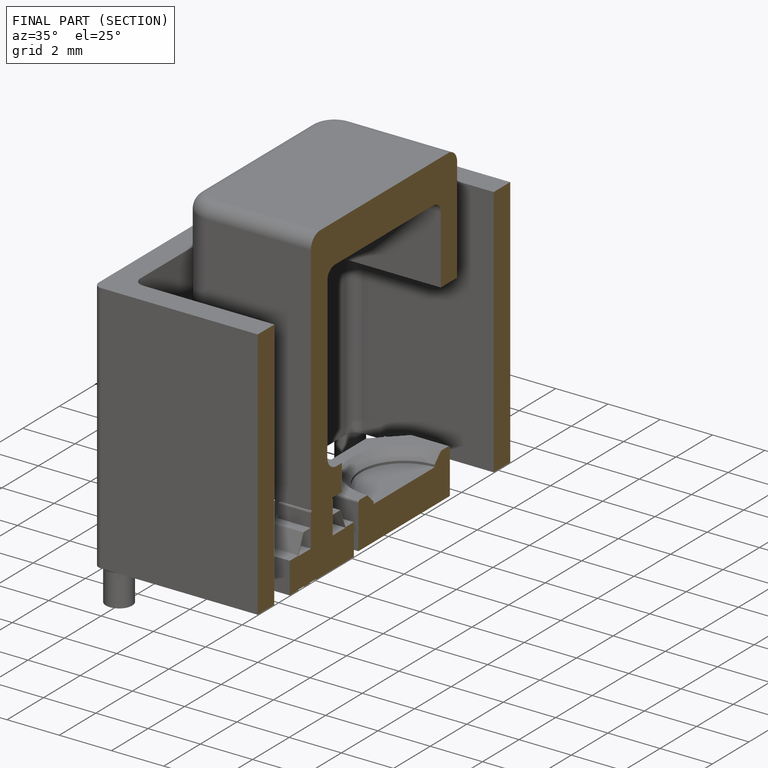
[diagram: finished part — half-section view (interior)]
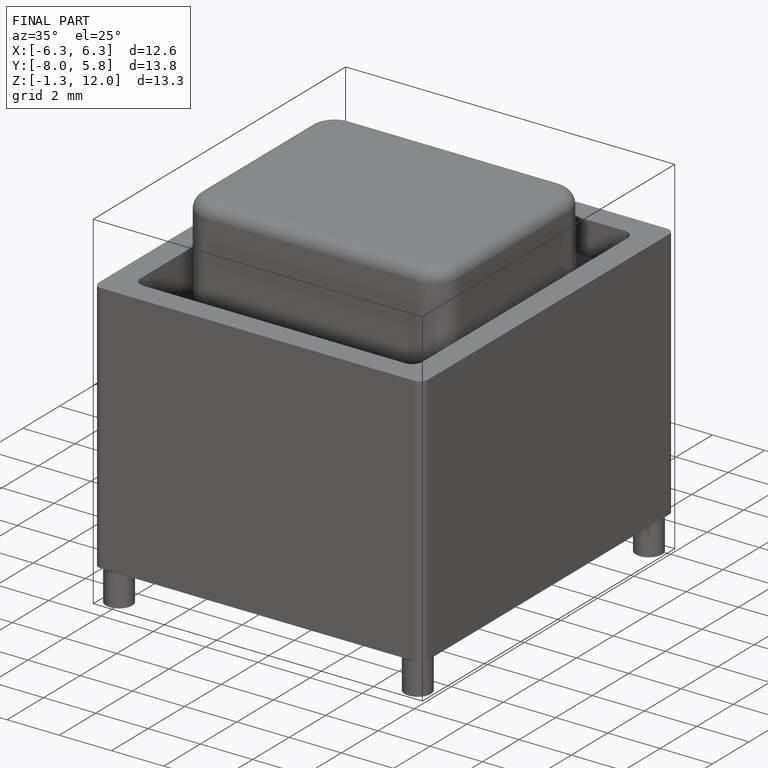
[diagram: finished part — iso view with bounding-box wireframe]
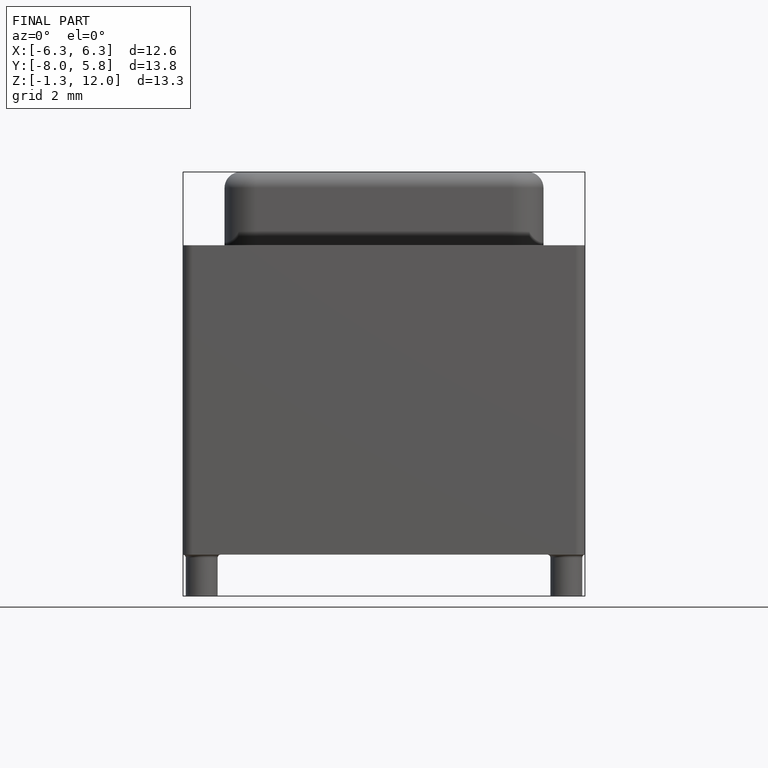
[diagram: finished part — front view with bounding-box wireframe]
